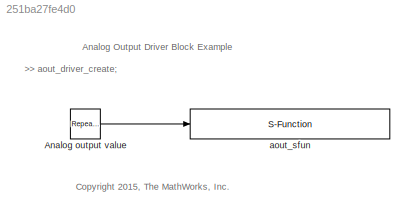
MODEL slx_251ba27fe4d0
KIND model
BLOCK [Reference] Analog output value  REF=simulink/Sources/Repeating
Sequence
Stair
  ConRadixGroup = Best Precision: Vector-wise
  LockScale = off
  OutDataType = fixdt(0,8)
  OutDataTypeStr = uint8
  OutMax = []
  OutMin = []
  OutScaling = 2^-12
  OutValues = [20:10:255 255:-10:1]
  OutputDataTypeScalingMode = uint8
  Ports = [0, 1]
  SourceBlock = simulink/Sources/Repeating\nSequence\nStair
  SourceType = Repeating Sequence Stair
  tsamp = 0.01
BLOCK [S-Function] aout_sfun
  FunctionName = aout_sfun
  Parameters = SParameter1
  Ports = [1]
ANNOTATION (root): >> aout_driver_create;
ANNOTATION (root): Analog Output Driver Block Example
ANNOTATION (root): <copyright redacted>
LINE Analog output value:1 -> aout_sfun:1
